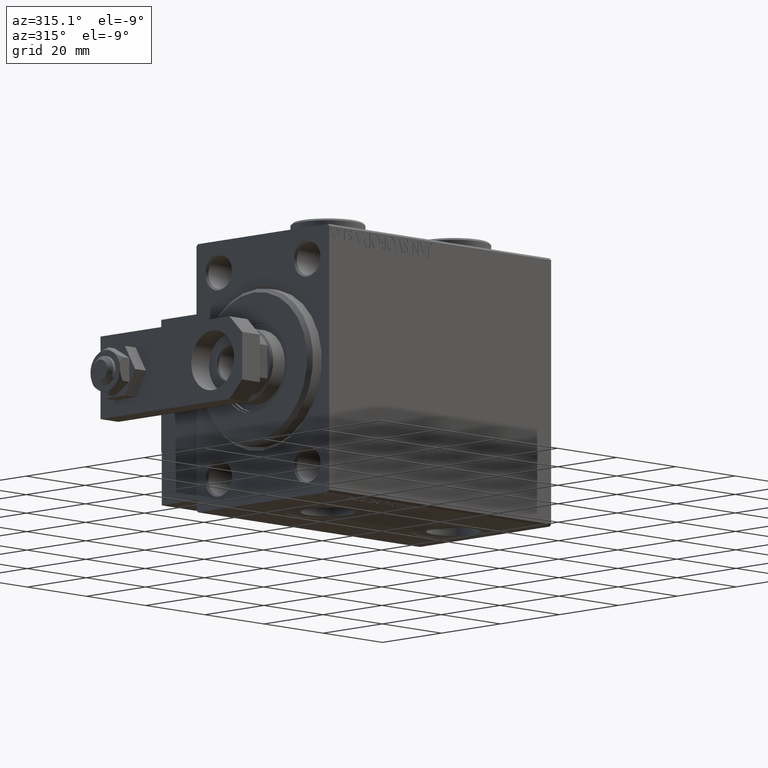
[diagram: clean part render]
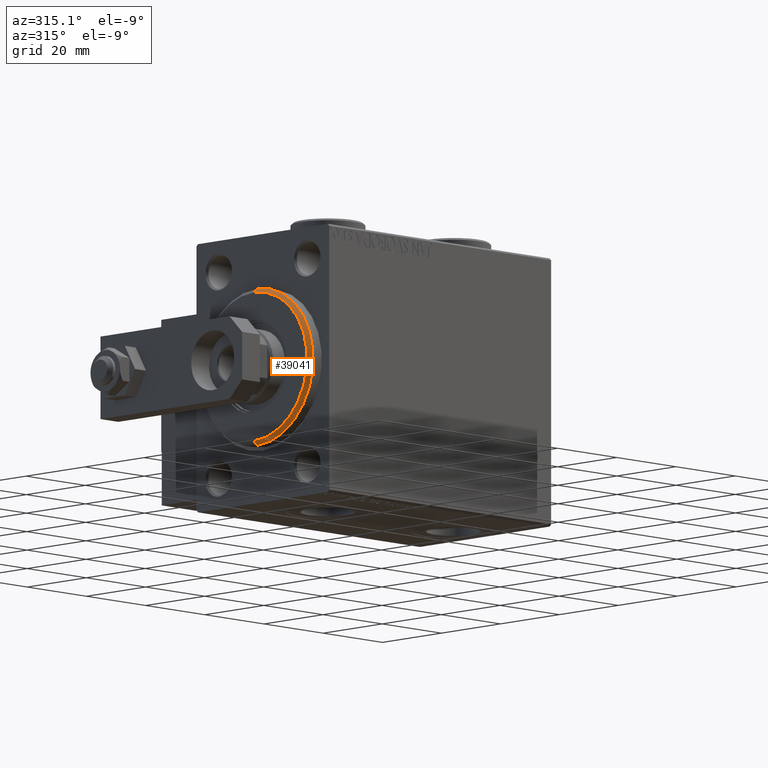
[diagram: same view with one face highlighted and labeled with its STEP entity id]
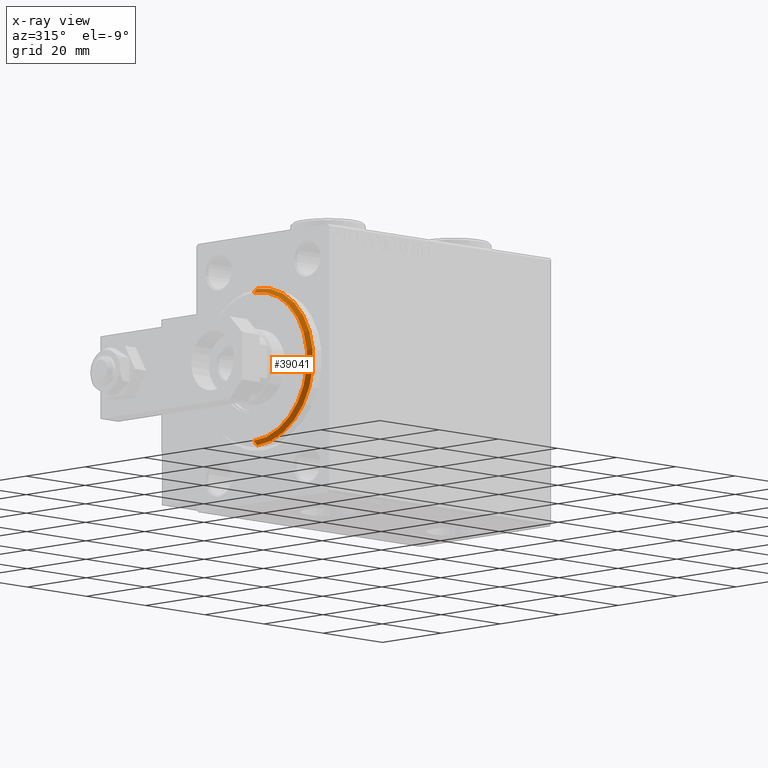
[diagram: x-ray of the same camera — body ghosted, the highlighted face saturated]
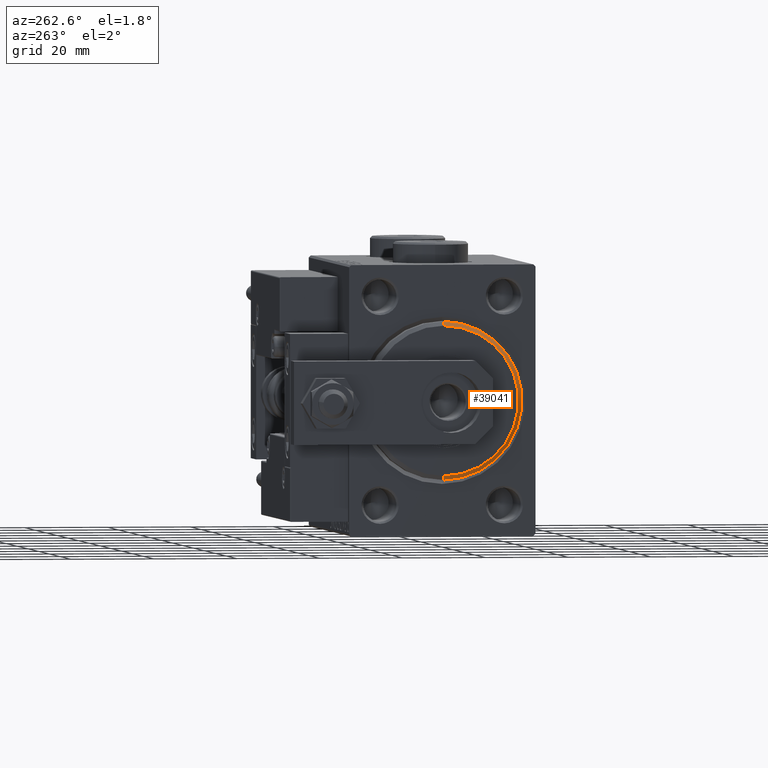
[diagram: same view with one face highlighted and labeled with its STEP entity id]
A machine part, auxiliary view. The second image highlights one B-rep face of the part: STEP entity #39041.
The next image is the same camera in x-ray: the body ghosted, the highlighted face saturated — about 0% of this face is hidden behind the body in this view.
A second angle (auxiliary view) of the same face is appended — the face is thin or edge-on in the first view.
In plain terms, the highlighted conical surface has half-angle 45 deg.
Its self-contained STEP definition (entity closure, byte-faithful):
#936 = CONICAL_SURFACE ( 'NONE', #44250, 17.99999999999999645, 0.7853981633974466137 ) ;
#1358 = EDGE_LOOP ( 'NONE', ( #50823, #28801, #26075, #26116 ) ) ;
#4312 = VERTEX_POINT ( 'NONE', #29950 ) ;
#4727 = VECTOR ( 'NONE', #26213, 1000.000000000000000 ) ;
#5156 = CARTESIAN_POINT ( 'NONE',  ( 3.000000000000000000, 0.000000000000000000, 0.000000000000000000 ) ) ;
#5933 = DIRECTION ( 'NONE',  ( 0.000000000000000000, 0.000000000000000000, -1.000000000000000000 ) ) ;
#6893 = VERTEX_POINT ( 'NONE', #15176 ) ;
#8597 = VECTOR ( 'NONE', #21717, 1000.000000000000000 ) ;
#8827 = DIRECTION ( 'NONE',  ( -1.000000000000000000, 0.000000000000000000, 0.000000000000000000 ) ) ;
#9467 = EDGE_CURVE ( 'NONE', #4312, #21760, #20813, .T. ) ;
#9469 = CARTESIAN_POINT ( 'NONE',  ( 3.000000000000000000, 0.000000000000000000, 17.99999999999999645 ) ) ;
#10174 = DIRECTION ( 'NONE',  ( 1.000000000000000000, -0.000000000000000000, 0.000000000000000000 ) ) ;
#12806 = CARTESIAN_POINT ( 'NONE',  ( 3.000000000000000000, 0.000000000000000000, 0.000000000000000000 ) ) ;
#13336 = FACE_OUTER_BOUND ( 'NONE', #1358, .T. ) ;
#15176 = CARTESIAN_POINT ( 'NONE',  ( 1.999999999999992228, 2.326828918379970970E-15, -19.00000000000000000 ) ) ;
#15564 = CIRCLE ( 'NONE', #45308, 19.00000000000000000 ) ;
#20813 = CIRCLE ( 'NONE', #27623, 17.99999999999999645 ) ;
#21326 = DIRECTION ( 'NONE',  ( 0.000000000000000000, 0.000000000000000000, 1.000000000000000000 ) ) ;
#21717 = DIRECTION ( 'NONE',  ( -0.7071067811865487940, 0.000000000000000000, 0.7071067811865463515 ) ) ;
#21760 = VERTEX_POINT ( 'NONE', #31538 ) ;
#25419 = CARTESIAN_POINT ( 'NONE',  ( 3.000000000000000000, 2.204364238465235033E-15, -17.99999999999999645 ) ) ;
#26075 = ORIENTED_EDGE ( 'NONE', *, *, #43926, .F. ) ;
#26116 = ORIENTED_EDGE ( 'NONE', *, *, #37184, .F. ) ;
#26213 = DIRECTION ( 'NONE',  ( -0.7071067811865487940, 8.659560562354918067E-17, -0.7071067811865463515 ) ) ;
#26606 = CARTESIAN_POINT ( 'NONE',  ( 1.999999999999992228, 0.000000000000000000, 0.000000000000000000 ) ) ;
#27623 = AXIS2_PLACEMENT_3D ( 'NONE', #5156, #10174, #5933 ) ;
#28801 = ORIENTED_EDGE ( 'NONE', *, *, #49271, .T. ) ;
#29771 = CARTESIAN_POINT ( 'NONE',  ( 1.999999999999992228, 0.000000000000000000, 19.00000000000000000 ) ) ;
#29950 = CARTESIAN_POINT ( 'NONE',  ( 3.000000000000000000, 2.265596578422603002E-15, -17.99999999999999645 ) ) ;
#31538 = CARTESIAN_POINT ( 'NONE',  ( 3.000000000000000000, 0.000000000000000000, 17.99999999999999645 ) ) ;
#34849 = DIRECTION ( 'NONE',  ( -1.000000000000000000, 0.000000000000000000, 0.000000000000000000 ) ) ;
#37184 = EDGE_CURVE ( 'NONE', #21760, #44912, #40881, .T. ) ;
#39041 = ADVANCED_FACE ( 'NONE', ( #13336 ), #936, .T. ) ;
#40881 = LINE ( 'NONE', #9469, #8597 ) ;
#43926 = EDGE_CURVE ( 'NONE', #44912, #6893, #15564, .T. ) ;
#44250 = AXIS2_PLACEMENT_3D ( 'NONE', #12806, #8827, #21326 ) ;
#44912 = VERTEX_POINT ( 'NONE', #29771 ) ;
#45308 = AXIS2_PLACEMENT_3D ( 'NONE', #26606, #34849, #46540 ) ;
#46402 = LINE ( 'NONE', #25419, #4727 ) ;
#46540 = DIRECTION ( 'NONE',  ( 0.000000000000000000, 0.000000000000000000, -1.000000000000000000 ) ) ;
#49271 = EDGE_CURVE ( 'NONE', #4312, #6893, #46402, .T. ) ;
#50823 = ORIENTED_EDGE ( 'NONE', *, *, #9467, .F. ) ;